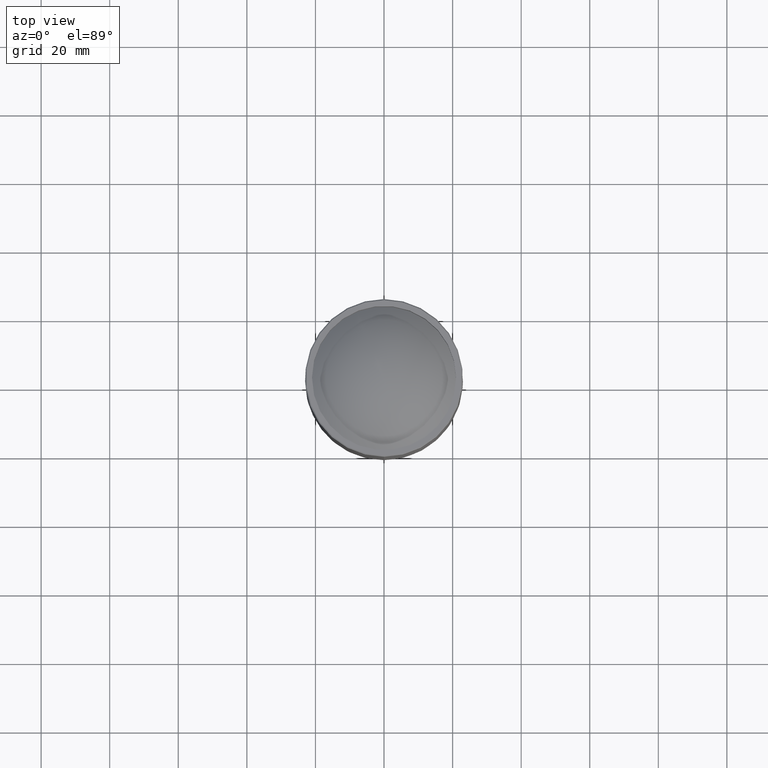
[diagram: clean part render]
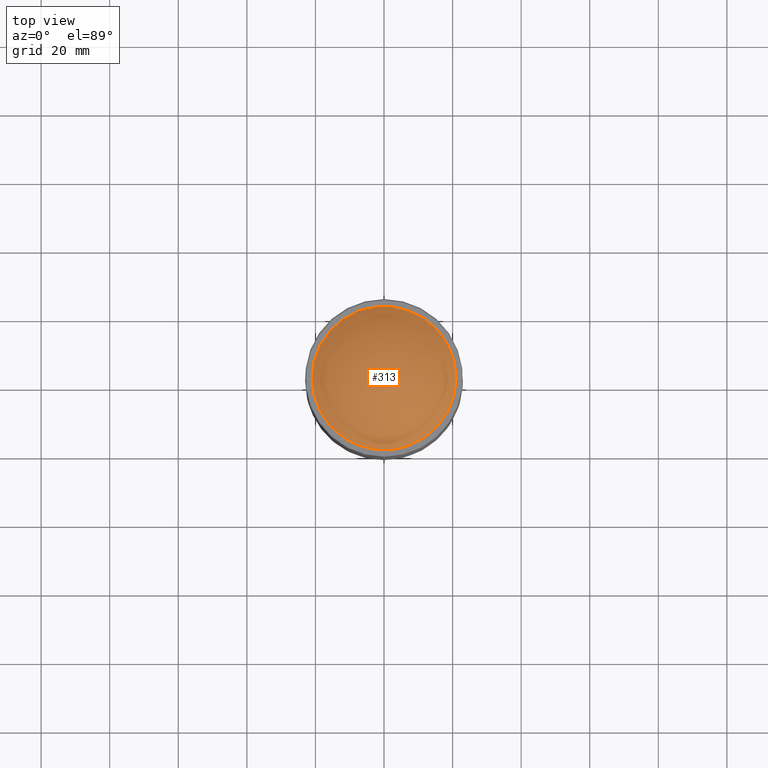
[diagram: same view with one face highlighted and labeled with its STEP entity id]
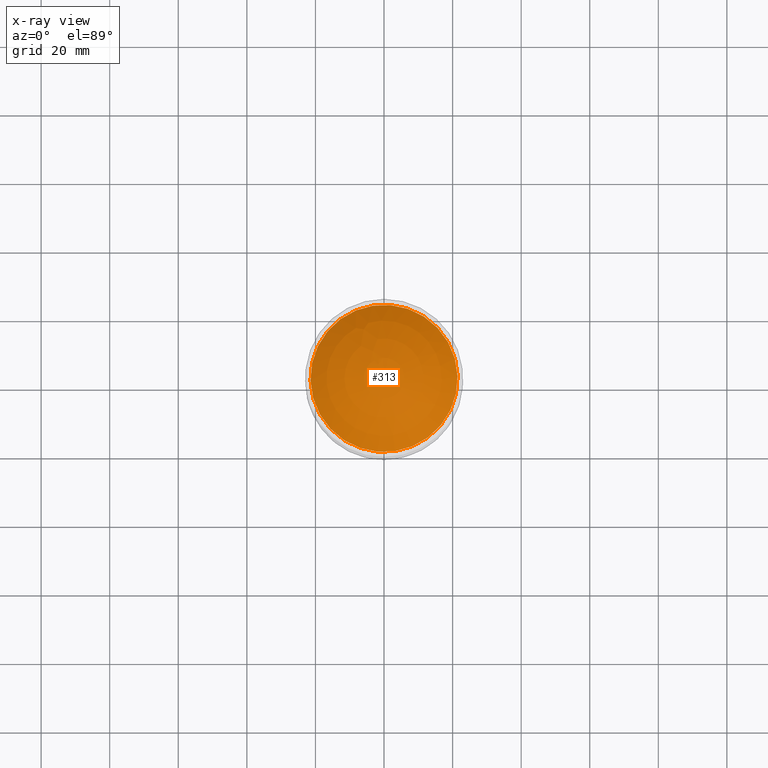
[diagram: x-ray of the same camera — body ghosted, the highlighted face saturated]
A machine part, top view. The second image highlights one B-rep face of the part: STEP entity #313.
The next image is the same camera in x-ray: the body ghosted, the highlighted face saturated — about 0% of this face is hidden behind the body in this view.
In plain terms, the highlighted spherical surface has radius 31.2095 mm.
Its self-contained STEP definition (entity closure, byte-faithful):
#66 = CARTESIAN_POINT ( 'NONE',  ( -2.775557561562891351E-14, 6.938893903907228378E-15, -576.0000000000001137 ) ) ;
#152 = CIRCLE ( 'NONE', #558, 21.45211006975307555 ) ;
#233 = SPHERICAL_SURFACE ( 'NONE', #624, 31.20951493132240273 ) ;
#246 = VERTEX_POINT ( 'NONE', #437 ) ;
#313 = ADVANCED_FACE ( 'NONE', ( #498 ), #233, .T. ) ;
#391 = EDGE_LOOP ( 'NONE', ( #515 ) ) ;
#437 = CARTESIAN_POINT ( 'NONE',  ( 8.217209483082285715, -19.81591518845251798, -576.0000000000001137 ) ) ;
#498 = FACE_OUTER_BOUND ( 'NONE', #391, .T. ) ;
#515 = ORIENTED_EDGE ( 'NONE', *, *, #602, .F. ) ;
#558 = AXIS2_PLACEMENT_3D ( 'NONE', #66, #586, #608 ) ;
#586 = DIRECTION ( 'NONE',  ( -1.232595164407830946E-32, -1.318609258053555361E-16, -1.000000000000000000 ) ) ;
#602 = EDGE_CURVE ( 'NONE', #246, #246, #152, .T. ) ;
#608 = DIRECTION ( 'NONE',  ( 0.3830490080632379390, -0.9237280213470682178, 0.000000000000000000 ) ) ;
#624 = AXIS2_PLACEMENT_3D ( 'NONE', #760, #762, #706 ) ;
#706 = DIRECTION ( 'NONE',  ( -0.3830490080632378835, 0.9237280213470681067, 0.000000000000000000 ) ) ;
#760 = CARTESIAN_POINT ( 'NONE',  ( -2.775557561562891351E-14, 6.938893903907228378E-15, -598.6680567275546991 ) ) ;
#762 = DIRECTION ( 'NONE',  ( 4.665676044949140993E-17, 1.934749774458438248E-17, 1.000000000000000000 ) ) ;